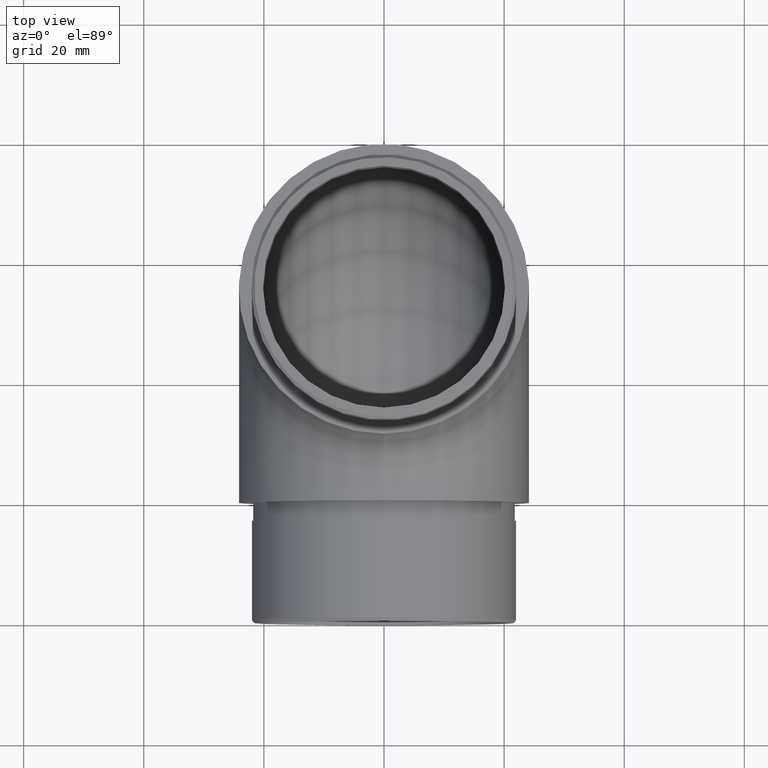
[diagram: clean part render]
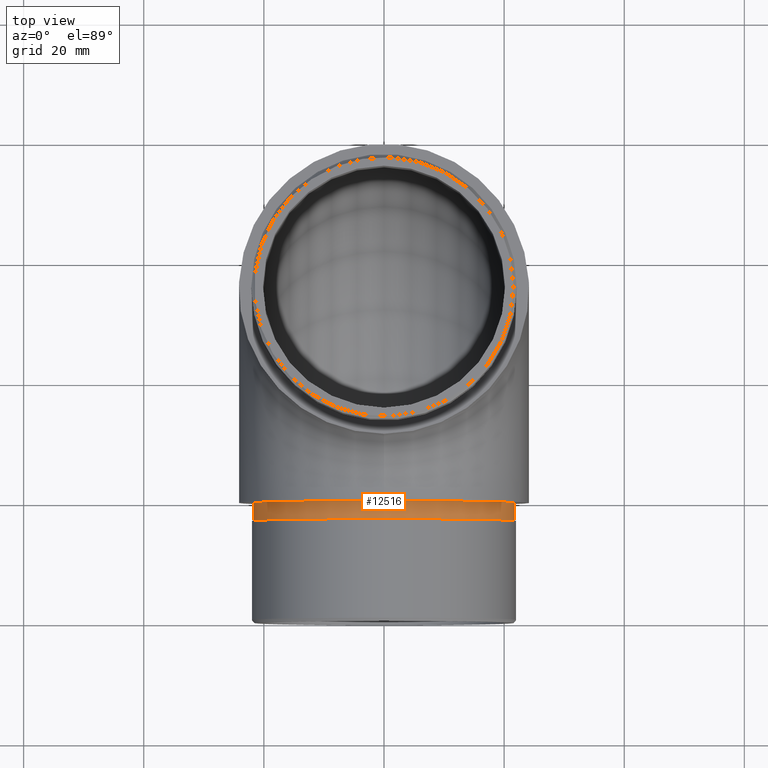
[diagram: same view with one face highlighted and labeled with its STEP entity id]
A machine part, top view. The second image highlights one B-rep face of the part: STEP entity #12516.
In plain terms, the highlighted cylindrical surface (bore or boss wall) has radius 21.9 mm, axis along (-0, 1, -0).
Its self-contained STEP definition (entity closure, byte-faithful):
#13 = ORIENTED_EDGE ( 'NONE', *, *, #9694, .T. ) ;
#193 = EDGE_LOOP ( 'NONE', ( #14485 ) ) ;
#941 = EDGE_CURVE ( 'NONE', #12548, #12548, #3293, .T. ) ;
#1058 = DIRECTION ( 'NONE',  ( 0.0000000000000000000, 0.0000000000000000000, 1.000000000000000000 ) ) ;
#2091 = CYLINDRICAL_SURFACE ( 'NONE', #12642, 21.90000000000000200 ) ;
#2361 = AXIS2_PLACEMENT_3D ( 'NONE', #6934, #9188, #8085 ) ;
#2421 = VERTEX_POINT ( 'NONE', #11881 ) ;
#3293 = CIRCLE ( 'NONE', #2361, 21.90000000000000200 ) ;
#3689 = DIRECTION ( 'NONE',  ( 0.0000000000000000000, 0.0000000000000000000, 1.000000000000000000 ) ) ;
#4726 = CIRCLE ( 'NONE', #5775, 21.90000000000000200 ) ;
#5602 = DIRECTION ( 'NONE',  ( -0.0000000000000000000, -1.000000000000000000, -0.0000000000000000000 ) ) ;
#5775 = AXIS2_PLACEMENT_3D ( 'NONE', #7730, #5602, #1058 ) ;
#6793 = FACE_OUTER_BOUND ( 'NONE', #7213, .T. ) ;
#6934 = CARTESIAN_POINT ( 'NONE',  ( 0.0000000000000000000, -3.000000000000000000, 24.15000000000000600 ) ) ;
#7213 = EDGE_LOOP ( 'NONE', ( #13 ) ) ;
#7730 = CARTESIAN_POINT ( 'NONE',  ( 0.0000000000000000000, 0.0000000000000000000, 24.15000000000000600 ) ) ;
#8085 = DIRECTION ( 'NONE',  ( 0.0000000000000000000, 0.0000000000000000000, -1.000000000000000000 ) ) ;
#9188 = DIRECTION ( 'NONE',  ( 0.0000000000000000000, -1.000000000000000000, 0.0000000000000000000 ) ) ;
#9694 = EDGE_CURVE ( 'NONE', #2421, #2421, #4726, .T. ) ;
#10485 = CARTESIAN_POINT ( 'NONE',  ( 0.0000000000000000000, -3.000000000000000000, 24.15000000000000600 ) ) ;
#11881 = CARTESIAN_POINT ( 'NONE',  ( 0.0000000000000000000, 0.0000000000000000000, 46.05000000000000400 ) ) ;
#12516 = ADVANCED_FACE ( 'NONE', ( #13985, #6793 ), #2091, .T. ) ;
#12548 = VERTEX_POINT ( 'NONE', #12979 ) ;
#12642 = AXIS2_PLACEMENT_3D ( 'NONE', #10485, #13706, #3689 ) ;
#12979 = CARTESIAN_POINT ( 'NONE',  ( 0.0000000000000000000, -3.000000000000000000, 2.250000000000001800 ) ) ;
#13706 = DIRECTION ( 'NONE',  ( -0.0000000000000000000, 1.000000000000000000, -0.0000000000000000000 ) ) ;
#13985 = FACE_OUTER_BOUND ( 'NONE', #193, .T. ) ;
#14485 = ORIENTED_EDGE ( 'NONE', *, *, #941, .F. ) ;